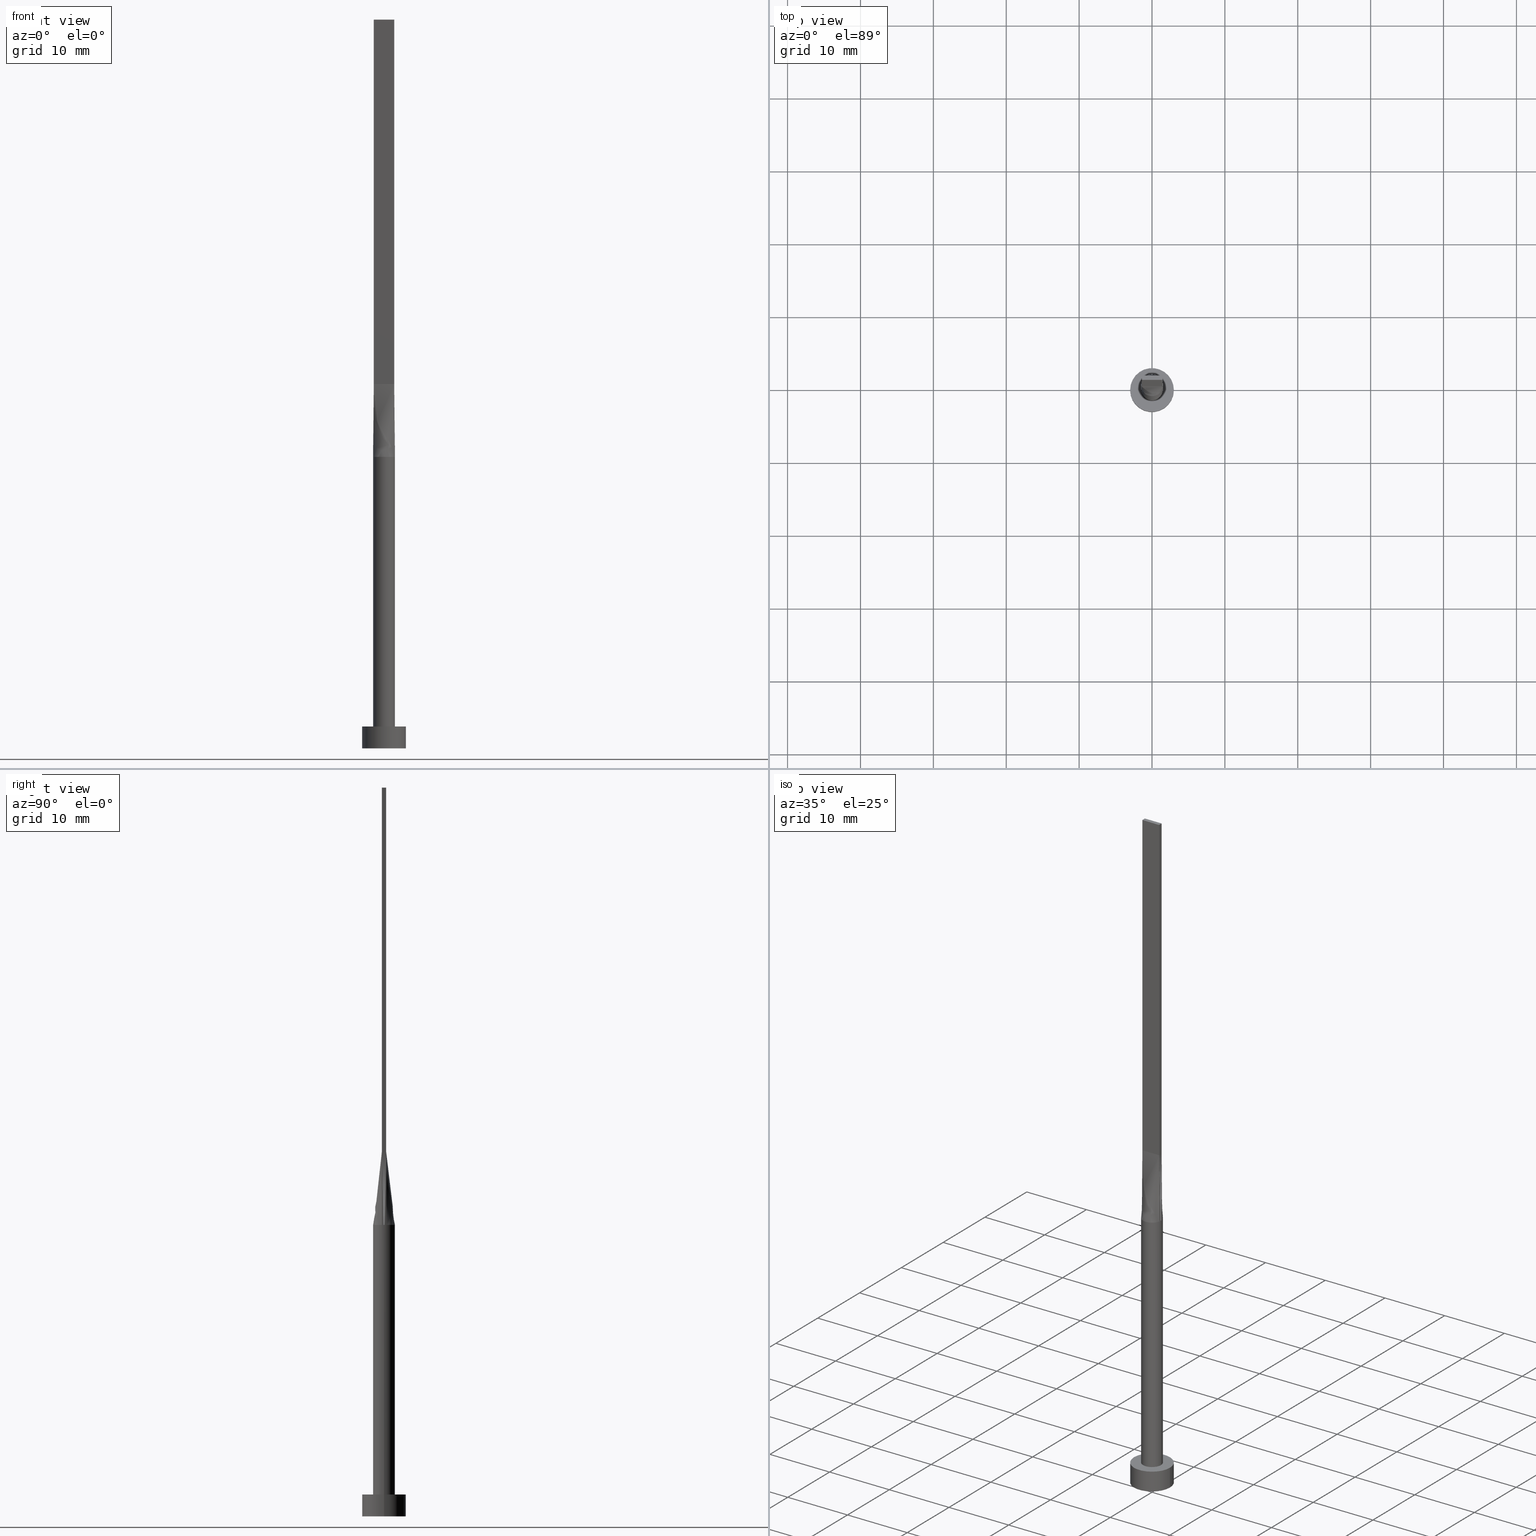
[diagram: canonical four-view strip — front | top / right | iso, engineering-drawing reading convention]
A machine part, canonical four-view strip (front | top / right | iso — engineering-drawing reading convention). The complete STEP part file that produces these views, byte-faithful:
ISO-10303-21;
HEADER;
FILE_DESCRIPTION (( 'STEP AP203' ),
    '1' );
FILE_NAME ('624e.STEP',
    '2026-02-12T09:00:39',
    ( '' ),
    ( '' ),
    'SwSTEP 2.0',
    'SolidWorks 2019',
    '' );
FILE_SCHEMA (( 'CONFIG_CONTROL_DESIGN' ));
ENDSEC;

DATA;
#1 =( LENGTH_UNIT ( ) NAMED_UNIT ( * ) SI_UNIT ( .MILLI., .METRE. ) );
#2 = CARTESIAN_POINT ( 'NONE',  ( 0.8166666666666667629, 0.3000000000000001554, 50.00000000000000000 ) ) ;
#3 = ADVANCED_FACE ( 'NONE', ( #120 ), #307, .F. ) ;
#4 = VECTOR ( 'NONE', #37, 1000.000000000000000 ) ;
#5 = CARTESIAN_POINT ( 'NONE',  ( 1.488654840628309328, 0.2118546087060660665, 40.00000000000000000 ) ) ;
#6 = CARTESIAN_POINT ( 'NONE',  ( 1.261673556793541540, 0.8246322331683844098, 40.00000000000000000 ) ) ;
#7 = CARTESIAN_POINT ( 'NONE',  ( 3.000000000000000444, 3.673940397442060361E-16, 3.000000000000000000 ) ) ;
#8 = DIRECTION ( 'NONE',  ( 1.000000000000000000, 0.000000000000000000, 0.000000000000000000 ) ) ;
#9 = CARTESIAN_POINT ( 'NONE',  ( 1.466854622690809462, -0.3143260906982852099, 40.00000000000000000 ) ) ;
#10 = PERSON_AND_ORGANIZATION ( #448, #331 ) ;
#11 = CARTESIAN_POINT ( 'NONE',  ( -1.167251067653077845, -0.9579686032593084377, 40.00000000000000711 ) ) ;
#12 = ORIENTED_EDGE ( 'NONE', *, *, #298, .T. ) ;
#13 = CARTESIAN_POINT ( 'NONE',  ( 0.2333333333333334758, 0.3000000000000001554, 50.00000000000000000 ) ) ;
#14 = DIRECTION ( 'NONE',  ( 1.000000000000000000, -5.808225924029488744E-17, 0.000000000000000000 ) ) ;
#15 = CARTESIAN_POINT ( 'NONE',  ( -0.7614511870148455985, -1.306864626778803995, 40.00000000000000000 ) ) ;
#16 = AXIS2_PLACEMENT_3D ( 'NONE', #405, #225, #267 ) ;
#17 = APPLICATION_CONTEXT ( 'configuration controlled 3d designs of mechanical parts and assemblies' ) ;
#18 = ADVANCED_FACE ( 'NONE', ( #70, #532 ), #136, .T. ) ;
#19 = AXIS2_PLACEMENT_3D ( 'NONE', #237, #499, #92 ) ;
#20 = FACE_OUTER_BOUND ( 'NONE', #98, .T. ) ;
#21 = CARTESIAN_POINT ( 'NONE',  ( -0.2333333333333330595, -0.2999999999999997113, 50.00000000000000711 ) ) ;
#22 = CARTESIAN_POINT ( 'NONE',  ( 0.8166666666666669849, -0.2999999999999997113, 50.00000000000000000 ) ) ;
#23 = EDGE_LOOP ( 'NONE', ( #305, #186, #171, #167 ) ) ;
#24 = APPROVAL ( #248, 'NEUR�EN�' ) ;
#25 = CALENDAR_DATE ( 2026, 12, 2 ) ;
#26 = CIRCLE ( 'NONE', #312, 1.500000000000000222 ) ;
#27 = EDGE_LOOP ( 'NONE', ( #302, #345, #118, #165, #173, #261 ) ) ;
#28 = DATE_AND_TIME ( #294, #271 ) ;
#29 = DIRECTION ( 'NONE',  ( 1.000000000000000000, 0.000000000000000000, 0.000000000000000000 ) ) ;
#30 = ORIENTED_EDGE ( 'NONE', *, *, #550, .T. ) ;
#31 = DIRECTION ( 'NONE',  ( 0.000000000000000000, 0.000000000000000000, 1.000000000000000000 ) ) ;
#32 = ORIENTED_EDGE ( 'NONE', *, *, #547, .T. ) ;
#33 = CARTESIAN_POINT ( 'NONE',  ( -1.399999999999999689, 0.1000000000000005329, 50.00000000000000000 ) ) ;
#34 = CARTESIAN_POINT ( 'NONE',  ( 0.000000000000000000, 0.000000000000000000, 3.000000000000000000 ) ) ;
#35 = DIRECTION ( 'NONE',  ( -0.000000000000000000, -0.000000000000000000, -1.000000000000000000 ) ) ;
#36 = CARTESIAN_POINT ( 'NONE',  ( 1.441093865018553410, 0.4338058282182615244, 39.99999999999999289 ) ) ;
#37 = DIRECTION ( 'NONE',  ( -0.000000000000000000, -0.000000000000000000, -1.000000000000000000 ) ) ;
#38 = DIRECTION ( 'NONE',  ( 1.000000000000000000, 0.000000000000000000, 0.000000000000000000 ) ) ;
#39 = EDGE_CURVE ( 'NONE', #466, #545, #436, .T. ) ;
#40 = CARTESIAN_POINT ( 'NONE',  ( 1.466825456746648992, 0.3143198820638501978, 40.00000000000000000 ) ) ;
#41 = B_SPLINE_SURFACE_WITH_KNOTS ( 'NONE', 3, 1, ( 
 ( #124, #576 ),
 ( #303, #133 ),
 ( #310, #33 ),
 ( #479, #573 ),
 ( #184, #257 ),
 ( #441, #481 ) ),
 .UNSPECIFIED., .F., .F., .F.,
 ( 4, 2, 4 ),
 ( 2, 2 ),
 ( 0.000000000000000000, 0.5000000000000000000, 1.000000000000000000 ),
 ( 0.000000000000000000, 1.000000000000000000 ),
 .UNSPECIFIED. ) ;
#42 = MANIFOLD_SOLID_BREP ( 'P�idat vysunut�m5', #194 ) ;
#43 = CARTESIAN_POINT ( 'NONE',  ( -1.167251067653078289, 0.9579686032593087708, 40.00000000000003553 ) ) ;
#44 = DATE_AND_TIME ( #272, #96 ) ;
#45 = ORIENTED_EDGE ( 'NONE', *, *, #455, .F. ) ;
#46 = CYLINDRICAL_SURFACE ( 'NONE', #417, 3.000000000000000444 ) ;
#47 = CARTESIAN_POINT ( 'NONE',  ( -1.399999999999999911, -0.2999999999999996003, 50.00000000000000000 ) ) ;
#48 = CARTESIAN_POINT ( 'NONE',  ( 1.283333333333333215, 0.3000000000000002109, 50.00000000000000000 ) ) ;
#49 = VECTOR ( 'NONE', #256, 1000.000000000000000 ) ;
#50 = CARTESIAN_POINT ( 'NONE',  ( -1.399999999999999689, 0.3000000000000002109, 50.00000000000000000 ) ) ;
#51 = CARTESIAN_POINT ( 'NONE',  ( -0.1166666666666665297, 0.3000000000000001554, 50.00000000000000000 ) ) ;
#52 = DIRECTION ( 'NONE',  ( 0.000000000000000000, 0.000000000000000000, 1.000000000000000000 ) ) ;
#53 = CARTESIAN_POINT ( 'NONE',  ( -0.5833333333333331483, -0.2999999999999996558, 50.00000000000000711 ) ) ;
#54 = FACE_OUTER_BOUND ( 'NONE', #166, .T. ) ;
#55 = DIRECTION ( 'NONE',  ( -0.000000000000000000, -0.000000000000000000, -1.000000000000000000 ) ) ;
#56 = CARTESIAN_POINT ( 'NONE',  ( 1.399999999999999911, -0.2999999999999997669, 50.00000000000000000 ) ) ;
#57 = ORIENTED_EDGE ( 'NONE', *, *, #155, .T. ) ;
#58 = CARTESIAN_POINT ( 'NONE',  ( 1.398339371956842880, 0.5625704264602660043, 40.00000000000001421 ) ) ;
#59 = CARTESIAN_POINT ( 'NONE',  ( -0.9173979595380682417, -1.199399801402030397, 40.00000000000000711 ) ) ;
#60 = VECTOR ( 'NONE', #55, 1000.000000000000000 ) ;
#61 = FACE_OUTER_BOUND ( 'NONE', #182, .T. ) ;
#62 = ORIENTED_EDGE ( 'NONE', *, *, #259, .T. ) ;
#63 = ADVANCED_FACE ( 'NONE', ( #309 ), #130, .T. ) ;
#64 = PERSON_AND_ORGANIZATION ( #448, #331 ) ;
#65 = EDGE_LOOP ( 'NONE', ( #393, #223, #203, #467, #525, #348 ) ) ;
#66 = DIRECTION ( 'NONE',  ( -1.000000000000000000, 0.000000000000000000, 0.000000000000000000 ) ) ;
#67 = VECTOR ( 'NONE', #273, 1000.000000000000000 ) ;
#68 = CC_DESIGN_SECURITY_CLASSIFICATION ( #293, ( #196 ) ) ;
#69 = DATE_AND_TIME ( #289, #420 ) ;
#70 = FACE_BOUND ( 'NONE', #304, .T. ) ;
#71 = CARTESIAN_POINT ( 'NONE',  ( 1.500000000000000222, 1.836970198721030181E-16, 40.00000000000000000 ) ) ;
#72 = ORIENTED_EDGE ( 'NONE', *, *, #547, .F. ) ;
#73 = ORIENTED_EDGE ( 'NONE', *, *, #87, .T. ) ;
#74 = LINE ( 'NONE', #350, #4 ) ;
#75 = VERTEX_POINT ( 'NONE', #351 ) ;
#76 = CARTESIAN_POINT ( 'NONE',  ( 1.433351810558057160, -0.3071468165481548440, 45.00000000000000000 ) ) ;
#77 = AXIS2_PLACEMENT_3D ( 'NONE', #540, #577, #38 ) ;
#78 = PRODUCT ( '624e', '624e', '', ( #379 ) ) ;
#79 = CARTESIAN_POINT ( 'NONE',  ( -1.399999999999999911, -0.2999999999999996003, 100.0000000000000000 ) ) ;
#80 = LINE ( 'NONE', #260, #245 ) ;
#81 = EDGE_CURVE ( 'NONE', #466, #108, #389, .T. ) ;
#82 = FACE_OUTER_BOUND ( 'NONE', #371, .T. ) ;
#83 = EDGE_CURVE ( 'NONE', #507, #375, #487, .T. ) ;
#84 = CARTESIAN_POINT ( 'NONE',  ( 0.000000000000000000, 0.000000000000000000, 100.0000000000000000 ) ) ;
#85 = CARTESIAN_POINT ( 'NONE',  ( 0.4035854070682468042, 1.457676878506885654, 39.99999999999999289 ) ) ;
#86 = CIRCLE ( 'NONE', #179, 3.000000000000000444 ) ;
#87 = EDGE_CURVE ( 'NONE', #169, #347, #428, .T. ) ;
#88 = APPROVAL_ROLE ( '' ) ;
#89 = PLANE ( 'NONE',  #435 ) ;
#90 = DIRECTION ( 'NONE',  ( 1.000000000000000000, 3.552713678800500929E-15, 0.000000000000000000 ) ) ;
#91 = DIRECTION ( 'NONE',  ( 0.000000000000000000, 0.000000000000000000, 1.000000000000000000 ) ) ;
#92 = DIRECTION ( 'NONE',  ( 1.000000000000000000, 0.000000000000000000, 0.000000000000000000 ) ) ;
#93 = CARTESIAN_POINT ( 'NONE',  ( 1.166666666666666519, 0.3000000000000002109, 50.00000000000000000 ) ) ;
#94 = AXIS2_PLACEMENT_3D ( 'NONE', #34, #478, #66 ) ;
#95 = DIRECTION ( 'NONE',  ( 1.000000000000000000, 0.000000000000000000, 0.000000000000000000 ) ) ;
#96 = LOCAL_TIME ( 10, 0, 39.00000000000000000, #554 ) ;
#97 = PRODUCT_DEFINITION ( 'NEZN�M�', '', #196, #486 ) ;
#98 = EDGE_LOOP ( 'NONE', ( #132, #216, #423, #30 ) ) ;
#99 = CARTESIAN_POINT ( 'NONE',  ( -1.441093865018553410, 0.4338058282182611913, 39.99999999999997868 ) ) ;
#100 = EDGE_CURVE ( 'NONE', #116, #324, #328, .T. ) ;
#101 = CARTESIAN_POINT ( 'NONE',  ( -1.466837926445876628, -0.3143226152917824034, 40.00000000000000000 ) ) ;
#102 = CARTESIAN_POINT ( 'NONE',  ( 0.000000000000000000, 0.000000000000000000, 0.000000000000000000 ) ) ;
#103 = CC_DESIGN_PERSON_AND_ORGANIZATION_ASSIGNMENT ( #283, #146, ( #78 ) ) ;
#104 = ORIENTED_EDGE ( 'NONE', *, *, #298, .F. ) ;
#105 = DIRECTION ( 'NONE',  ( 1.000000000000000000, 0.000000000000000000, 0.000000000000000000 ) ) ;
#106 = CARTESIAN_POINT ( 'NONE',  ( 0.9333333333333337922, -0.2999999999999997113, 50.00000000000000000 ) ) ;
#107 = ADVANCED_BREP_SHAPE_REPRESENTATION ( '624e', ( #42, #19 ), #142 ) ;
#108 = VERTEX_POINT ( 'NONE', #217 ) ;
#109 = ORIENTED_EDGE ( 'NONE', *, *, #269, .F. ) ;
#110 = ADVANCED_FACE ( 'NONE', ( #82 ), #46, .T. ) ;
#111 = APPROVAL_DATE_TIME ( #429, #24 ) ;
#112 = DIRECTION ( 'NONE',  ( 1.000000000000000000, 0.000000000000000000, -0.000000000000000000 ) ) ;
#113 = AXIS2_PLACEMENT_3D ( 'NONE', #84, #229, #493 ) ;
#114 = EDGE_CURVE ( 'NONE', #75, #212, #145, .T. ) ;
#115 = LOCAL_TIME ( 10, 0, 39.00000000000000000, #563 ) ;
#116 = VERTEX_POINT ( 'NONE', #574 ) ;
#117 = CALENDAR_DATE ( 2026, 12, 2 ) ;
#118 = ORIENTED_EDGE ( 'NONE', *, *, #275, .T. ) ;
#119 = B_SPLINE_CURVE_WITH_KNOTS ( 'NONE', 3,
 ( #40, #36, #191, #361, #141, #185, #355, #85, #189, #270, #542, #446, #313, #43, #489, #442, #265, #231 ),
 .UNSPECIFIED., .F., .F.,
 ( 4, 2, 2, 2, 2, 2, 2, 2, 4 ),
 ( 0.000000000000000000, 0.1249999999999999445, 0.2499999999999998890, 0.3749999999999998890, 0.4999999999999998890, 0.6249999999999998890, 0.7500000000000000000, 0.8749999999999998890, 1.000000000000000000 ),
 .UNSPECIFIED. ) ;
#120 = FACE_OUTER_BOUND ( 'NONE', #339, .T. ) ;
#121 = EDGE_LOOP ( 'NONE', ( #334, #349, #241, #557, #104 ) ) ;
#122 = PERSON_AND_ORGANIZATION ( #448, #331 ) ;
#123 = DIRECTION ( 'NONE',  ( 0.000000000000000000, 0.000000000000000000, 1.000000000000000000 ) ) ;
#124 = CARTESIAN_POINT ( 'NONE',  ( -1.466703621116114409, 0.3142936330963100322, 40.00000000000000000 ) ) ;
#125 = CIRCLE ( 'NONE', #444, 1.500000000000000222 ) ;
#126 = ORIENTED_EDGE ( 'NONE', *, *, #276, .F. ) ;
#127 = APPROVAL_PERSON_ORGANIZATION ( #174, #24, #468 ) ;
#128 = ORIENTED_EDGE ( 'NONE', *, *, #39, .T. ) ;
#129 = ADVANCED_FACE ( 'NONE', ( #492 ), #449, .T. ) ;
#130 = CYLINDRICAL_SURFACE ( 'NONE', #94, 3.000000000000000444 ) ;
#131 = DIRECTION ( 'NONE',  ( -0.000000000000000000, -0.000000000000000000, -1.000000000000000000 ) ) ;
#132 = ORIENTED_EDGE ( 'NONE', *, *, #579, .T. ) ;
#133 = CARTESIAN_POINT ( 'NONE',  ( -1.399999999999999689, 0.2000000000000004274, 50.00000000000000000 ) ) ;
#134 = B_SPLINE_SURFACE_WITH_KNOTS ( 'NONE', 3, 1, ( 
 ( #510, #56 ),
 ( #295, #513 ),
 ( #462, #411 ),
 ( #543, #193 ),
 ( #5, #279 ),
 ( #158, #197 ) ),
 .UNSPECIFIED., .F., .F., .F.,
 ( 4, 2, 4 ),
 ( 2, 2 ),
 ( 0.000000000000000000, 0.5000000000000000000, 1.000000000000000000 ),
 ( 0.000000000000000000, 1.000000000000000000 ),
 .UNSPECIFIED. ) ;
#135 = UNCERTAINTY_MEASURE_WITH_UNIT (LENGTH_MEASURE( 1.000000000000000082E-05 ), #1, 'distance_accuracy_value', 'NONE');
#136 = PLANE ( 'NONE',  #311 ) ;
#137 = APPROVAL ( #168, 'NEUR�EN�' ) ;
#138 = LINE ( 'NONE', #314, #569 ) ;
#139 = EDGE_CURVE ( 'NONE', #116, #383, #399, .T. ) ;
#140 = AXIS2_PLACEMENT_3D ( 'NONE', #457, #242, #204 ) ;
#141 = CARTESIAN_POINT ( 'NONE',  ( 1.167251067653077401, 0.9579686032593092149, 40.00000000000002132 ) ) ;
#142 =( GEOMETRIC_REPRESENTATION_CONTEXT ( 3 ) GLOBAL_UNCERTAINTY_ASSIGNED_CONTEXT ( ( #135 ) ) GLOBAL_UNIT_ASSIGNED_CONTEXT ( ( #1, #415, #447 ) ) REPRESENTATION_CONTEXT ( 'NONE', 'WORKASPACE' ) );
#143 = CARTESIAN_POINT ( 'NONE',  ( -1.399999999999999689, 0.3000000000000002109, 100.0000000000000000 ) ) ;
#144 = CARTESIAN_POINT ( 'NONE',  ( -1.433351810558057160, 0.3071468165481554546, 45.00000000000000000 ) ) ;
#145 = LINE ( 'NONE', #192, #386 ) ;
#146 = PERSON_AND_ORGANIZATION_ROLE ( 'design_owner' ) ;
#147 = DIRECTION ( 'NONE',  ( -0.000000000000000000, -0.000000000000000000, -1.000000000000000000 ) ) ;
#148 = AXIS2_PLACEMENT_3D ( 'NONE', #306, #308, #568 ) ;
#149 = VECTOR ( 'NONE', #495, 1000.000000000000000 ) ;
#150 = APPLICATION_CONTEXT ( 'configuration controlled 3d designs of mechanical parts and assemblies' ) ;
#151 = CARTESIAN_POINT ( 'NONE',  ( -1.166666666666666075, 0.3000000000000002665, 50.00000000000000000 ) ) ;
#152 = LINE ( 'NONE', #50, #149 ) ;
#153 = CARTESIAN_POINT ( 'NONE',  ( -0.2021039475585064971, 1.499999999999999556, 40.00000000000000000 ) ) ;
#154 = FACE_OUTER_BOUND ( 'NONE', #177, .T. ) ;
#155 = EDGE_CURVE ( 'NONE', #156, #169, #556, .T. ) ;
#156 = VERTEX_POINT ( 'NONE', #233 ) ;
#157 = CARTESIAN_POINT ( 'NONE',  ( 1.466703621116114409, 0.3142936330963102542, 40.00000000000000000 ) ) ;
#158 = CARTESIAN_POINT ( 'NONE',  ( 1.466703621116114409, 0.3142936330963098102, 40.00000000000000000 ) ) ;
#159 = CARTESIAN_POINT ( 'NONE',  ( 1.466703621116114409, -0.3142936330963098657, 40.00000000000000000 ) ) ;
#160 = CARTESIAN_POINT ( 'NONE',  ( -0.9173979595380679086, 1.199399801402030397, 40.00000000000000000 ) ) ;
#161 = CARTESIAN_POINT ( 'NONE',  ( 1.261673556793541762, -0.8246322331683848539, 40.00000000000000000 ) ) ;
#162 = ADVANCED_FACE ( 'NONE', ( #316 ), #534, .T. ) ;
#163 = PERSON_AND_ORGANIZATION ( #448, #331 ) ;
#164 = CARTESIAN_POINT ( 'NONE',  ( 0.7614511870148451544, -1.306864626778804439, 39.99999999999998579 ) ) ;
#165 = ORIENTED_EDGE ( 'NONE', *, *, #342, .F. ) ;
#166 = EDGE_LOOP ( 'NONE', ( #400, #277, #353, #356 ) ) ;
#167 = ORIENTED_EDGE ( 'NONE', *, *, #183, .T. ) ;
#168 = APPROVAL_STATUS ( 'not_yet_approved' ) ;
#169 = VERTEX_POINT ( 'NONE', #268 ) ;
#170 = APPROVAL_PERSON_ORGANIZATION ( #477, #137, #210 ) ;
#171 = ORIENTED_EDGE ( 'NONE', *, *, #81, .T. ) ;
#172 = ORIENTED_EDGE ( 'NONE', *, *, #39, .F. ) ;
#173 = ORIENTED_EDGE ( 'NONE', *, *, #100, .F. ) ;
#174 = PERSON_AND_ORGANIZATION ( #448, #331 ) ;
#175 = ORIENTED_EDGE ( 'NONE', *, *, #183, .F. ) ;
#176 = EDGE_CURVE ( 'NONE', #108, #483, #443, .T. ) ;
#177 = EDGE_LOOP ( 'NONE', ( #469, #291 ) ) ;
#178 = DIRECTION ( 'NONE',  ( -0.006670206908340743472, 0.001429330051787287706, 0.9999767324070110153 ) ) ;
#179 = AXIS2_PLACEMENT_3D ( 'NONE', #288, #91, #244 ) ;
#180 = DIRECTION ( 'NONE',  ( -1.000000000000000000, -3.614007241618348771E-16, 0.000000000000000000 ) ) ;
#181 = FACE_OUTER_BOUND ( 'NONE', #344, .T. ) ;
#182 = EDGE_LOOP ( 'NONE', ( #62, #12, #72, #575 ) ) ;
#183 = EDGE_CURVE ( 'NONE', #108, #507, #321, .T. ) ;
#184 = CARTESIAN_POINT ( 'NONE',  ( -1.488654840628309328, -0.2118546087060659000, 40.00000000000000000 ) ) ;
#185 = CARTESIAN_POINT ( 'NONE',  ( 0.9173979595380679086, 1.199399801402031285, 40.00000000000001421 ) ) ;
#186 = ORIENTED_EDGE ( 'NONE', *, *, #317, .T. ) ;
#187 = LINE ( 'NONE', #71, #544 ) ;
#188 = VECTOR ( 'NONE', #580, 1000.000000000000000 ) ;
#189 = CARTESIAN_POINT ( 'NONE',  ( 0.2021039475585061640, 1.500000000000000222, 40.00000000000000711 ) ) ;
#190 = CC_DESIGN_APPROVAL ( #137, ( #196 ) ) ;
#191 = CARTESIAN_POINT ( 'NONE',  ( 1.398339371956842880, 0.5625704264602660043, 40.00000000000001421 ) ) ;
#192 = CARTESIAN_POINT ( 'NONE',  ( 1.433351810558057160, 0.3071468165481550106, 45.00000000000000000 ) ) ;
#193 = CARTESIAN_POINT ( 'NONE',  ( 1.399999999999999689, 0.1000000000000000194, 50.00000000000000000 ) ) ;
#194 = CLOSED_SHELL ( 'NONE', ( #162, #110, #63, #18, #485, #424, #494, #500, #401, #253, #296, #323, #222, #3, #129 ) ) ;
#195 = CARTESIAN_POINT ( 'NONE',  ( 0.9333333333333333481, 0.3000000000000002109, 50.00000000000000000 ) ) ;
#196 = PRODUCT_DEFINITION_FORMATION_WITH_SPECIFIED_SOURCE ( 'LIBOVOLN�', '', #78, .NOT_KNOWN. ) ;
#197 = CARTESIAN_POINT ( 'NONE',  ( 1.399999999999999689, 0.3000000000000002109, 50.00000000000000000 ) ) ;
#198 = CARTESIAN_POINT ( 'NONE',  ( 0.7614511870148451544, 1.306864626778804883, 40.00000000000000000 ) ) ;
#199 = CARTESIAN_POINT ( 'NONE',  ( -0.4035854070682473038, -1.457676878506884988, 40.00000000000000000 ) ) ;
#200 = CARTESIAN_POINT ( 'NONE',  ( 1.167251067653077401, 0.9579686032593092149, 40.00000000000002132 ) ) ;
#201 = APPROVAL_STATUS ( 'not_yet_approved' ) ;
#202 = CARTESIAN_POINT ( 'NONE',  ( 0.5833333333333337034, -0.2999999999999997113, 50.00000000000000000 ) ) ;
#203 = ORIENTED_EDGE ( 'NONE', *, *, #259, .F. ) ;
#204 = DIRECTION ( 'NONE',  ( 1.000000000000000000, 0.000000000000000000, 0.000000000000000000 ) ) ;
#205 = VECTOR ( 'NONE', #406, 1000.000000000000114 ) ;
#206 = CARTESIAN_POINT ( 'NONE',  ( 1.398339371956842880, -0.5625704264602661153, 40.00000000000000000 ) ) ;
#207 = PLANE ( 'NONE',  #148 ) ;
#208 = CARTESIAN_POINT ( 'NONE',  ( -1.441093865018553632, -0.4338058282182608583, 39.99999999999999289 ) ) ;
#209 = ORIENTED_EDGE ( 'NONE', *, *, #176, .F. ) ;
#210 = APPROVAL_ROLE ( '' ) ;
#211 = CARTESIAN_POINT ( 'NONE',  ( 0.000000000000000000, 0.000000000000000000, 0.000000000000000000 ) ) ;
#212 = VERTEX_POINT ( 'NONE', #403 ) ;
#213 = VECTOR ( 'NONE', #480, 1000.000000000000000 ) ;
#214 = ORIENTED_EDGE ( 'NONE', *, *, #317, .F. ) ;
#215 = EDGE_CURVE ( 'NONE', #75, #116, #119, .T. ) ;
#216 = ORIENTED_EDGE ( 'NONE', *, *, #414, .F. ) ;
#217 = CARTESIAN_POINT ( 'NONE',  ( 1.399999999999999911, -0.2999999999999997669, 100.0000000000000000 ) ) ;
#218 = DIRECTION ( 'NONE',  ( 1.000000000000000000, 0.000000000000000000, 0.000000000000000000 ) ) ;
#219 = ORIENTED_EDGE ( 'NONE', *, *, #100, .T. ) ;
#220 = CARTESIAN_POINT ( 'NONE',  ( 0.000000000000000000, 0.000000000000000000, 3.000000000000000000 ) ) ;
#221 = CC_DESIGN_APPROVAL ( #297, ( #97 ) ) ;
#222 = ADVANCED_FACE ( 'NONE', ( #497 ), #89, .F. ) ;
#223 = ORIENTED_EDGE ( 'NONE', *, *, #529, .F. ) ;
#224 = DIRECTION ( 'NONE',  ( -1.000000000000000000, 0.000000000000000000, 0.000000000000000000 ) ) ;
#225 = DIRECTION ( 'NONE',  ( -0.000000000000000000, -0.000000000000000000, -1.000000000000000000 ) ) ;
#226 = ORIENTED_EDGE ( 'NONE', *, *, #275, .F. ) ;
#227 = LINE ( 'NONE', #398, #263 ) ;
#228 = CARTESIAN_POINT ( 'NONE',  ( 1.399999999999999911, -0.2999999999999997669, 100.0000000000000000 ) ) ;
#229 = DIRECTION ( 'NONE',  ( 0.000000000000000000, 0.000000000000000000, 1.000000000000000000 ) ) ;
#230 = AXIS2_PLACEMENT_3D ( 'NONE', #509, #52, #90 ) ;
#231 = CARTESIAN_POINT ( 'NONE',  ( -1.466842056764351865, 0.3143233427268645186, 40.00000000000000000 ) ) ;
#232 = APPROVAL_DATE_TIME ( #44, #297 ) ;
#233 = CARTESIAN_POINT ( 'NONE',  ( 3.000000000000000444, 3.673940397442060361E-16, 3.000000000000000000 ) ) ;
#234 = CARTESIAN_POINT ( 'NONE',  ( 0.4035854070682468042, 1.457676878506885654, 39.99999999999999289 ) ) ;
#235 = CARTESIAN_POINT ( 'NONE',  ( -1.283333333333332993, 0.3000000000000002665, 50.00000000000000000 ) ) ;
#236 = EDGE_CURVE ( 'NONE', #562, #347, #320, .T. ) ;
#237 = CARTESIAN_POINT ( 'NONE',  ( 0.000000000000000000, 0.000000000000000000, 0.000000000000000000 ) ) ;
#238 = CARTESIAN_POINT ( 'NONE',  ( -0.2333333333333330595, 0.3000000000000001554, 50.00000000000000000 ) ) ;
#239 = LINE ( 'NONE', #7, #60 ) ;
#240 = CARTESIAN_POINT ( 'NONE',  ( -1.500000000000000222, 0.000000000000000000, 3.000000000000000000 ) ) ;
#241 = ORIENTED_EDGE ( 'NONE', *, *, #114, .T. ) ;
#242 = DIRECTION ( 'NONE',  ( 0.000000000000000000, 0.000000000000000000, 1.000000000000000000 ) ) ;
#243 = CARTESIAN_POINT ( 'NONE',  ( -1.261673556793542206, -0.8246322331683838547, 39.99999999999998579 ) ) ;
#244 = DIRECTION ( 'NONE',  ( 1.000000000000000000, 0.000000000000000000, 0.000000000000000000 ) ) ;
#245 = VECTOR ( 'NONE', #395, 1000.000000000000000 ) ;
#246 = APPROVAL_DATE_TIME ( #28, #137 ) ;
#247 = DIRECTION ( 'NONE',  ( 0.000000000000000000, 0.000000000000000000, 1.000000000000000000 ) ) ;
#248 = APPROVAL_STATUS ( 'not_yet_approved' ) ;
#249 = CARTESIAN_POINT ( 'NONE',  ( 0.2021039475585061640, -1.499999999999999778, 40.00000000000000000 ) ) ;
#250 = ORIENTED_EDGE ( 'NONE', *, *, #176, .T. ) ;
#251 = VERTEX_POINT ( 'NONE', #9 ) ;
#252 = ORIENTED_EDGE ( 'NONE', *, *, #541, .F. ) ;
#253 = ADVANCED_FACE ( 'NONE', ( #54 ), #264, .T. ) ;
#254 = CARTESIAN_POINT ( 'NONE',  ( -1.399999999999999911, -0.2999999999999996003, 100.0000000000000000 ) ) ;
#255 = ORIENTED_EDGE ( 'NONE', *, *, #81, .F. ) ;
#256 = DIRECTION ( 'NONE',  ( -0.000000000000000000, -0.000000000000000000, -1.000000000000000000 ) ) ;
#257 = CARTESIAN_POINT ( 'NONE',  ( -1.399999999999999911, -0.1999999999999994560, 50.00000000000000000 ) ) ;
#258 = DIRECTION ( 'NONE',  ( 1.000000000000000000, -5.808225924029488744E-17, 0.000000000000000000 ) ) ;
#259 = EDGE_CURVE ( 'NONE', #516, #251, #453, .T. ) ;
#260 = CARTESIAN_POINT ( 'NONE',  ( 1.399999999999999689, 0.3000000000000002109, 50.00000000000000000 ) ) ;
#261 = ORIENTED_EDGE ( 'NONE', *, *, #215, .F. ) ;
#262 = DIRECTION ( 'NONE',  ( 1.000000000000000000, -3.614007241618349757E-16, 0.000000000000000000 ) ) ;
#263 = VECTOR ( 'NONE', #131, 1000.000000000000000 ) ;
#264 = B_SPLINE_SURFACE_WITH_KNOTS ( 'NONE', 3, 1, ( 
 ( #157, #407 ),
 ( #413, #48 ),
 ( #58, #93 ),
 ( #6, #195 ),
 ( #200, #2 ),
 ( #451, #454 ),
 ( #198, #460 ),
 ( #234, #13 ),
 ( #419, #408 ),
 ( #153, #51 ),
 ( #326, #238 ),
 ( #501, #558 ),
 ( #160, #325 ),
 ( #372, #368 ),
 ( #330, #508 ),
 ( #553, #151 ),
 ( #99, #235 ),
 ( #366, #285 ) ),
 .UNSPECIFIED., .F., .F., .F.,
 ( 4, 2, 2, 2, 2, 2, 2, 2, 4 ),
 ( 2, 2 ),
 ( 0.000000000000000000, 0.1249999999999999445, 0.2499999999999998890, 0.3749999999999998890, 0.4999999999999998890, 0.6249999999999998890, 0.7500000000000000000, 0.8749999999999998890, 1.000000000000000000 ),
 ( 0.000000000000000000, 1.000000000000000000 ),
 .UNSPECIFIED. ) ;
#265 = CARTESIAN_POINT ( 'NONE',  ( -1.441093865018553410, 0.4338058282182611913, 39.99999999999997868 ) ) ;
#266 = CARTESIAN_POINT ( 'NONE',  ( -1.399999999999999689, 0.3000000000000002109, 100.0000000000000000 ) ) ;
#267 = DIRECTION ( 'NONE',  ( -1.000000000000000000, 0.000000000000000000, 0.000000000000000000 ) ) ;
#268 = CARTESIAN_POINT ( 'NONE',  ( -3.000000000000000444, 0.000000000000000000, 3.000000000000000000 ) ) ;
#269 = EDGE_CURVE ( 'NONE', #545, #516, #377, .T. ) ;
#270 = CARTESIAN_POINT ( 'NONE',  ( -0.2021039475585064971, 1.499999999999999556, 40.00000000000000000 ) ) ;
#271 = LOCAL_TIME ( 10, 0, 39.00000000000000000, #299 ) ;
#272 = CALENDAR_DATE ( 2026, 12, 2 ) ;
#273 = DIRECTION ( 'NONE',  ( -3.614007241618348278E-16, 1.000000000000000000, 0.000000000000000000 ) ) ;
#274 = LINE ( 'NONE', #458, #378 ) ;
#275 = EDGE_CURVE ( 'NONE', #390, #470, #125, .T. ) ;
#276 = EDGE_CURVE ( 'NONE', #169, #156, #86, .T. ) ;
#277 = ORIENTED_EDGE ( 'NONE', *, *, #139, .T. ) ;
#278 = DIRECTION ( 'NONE',  ( -1.000000000000000000, 5.808225924029488744E-17, 0.000000000000000000 ) ) ;
#279 = CARTESIAN_POINT ( 'NONE',  ( 1.399999999999999689, 0.2000000000000000666, 50.00000000000000000 ) ) ;
#280 = AXIS2_PLACEMENT_3D ( 'NONE', #433, #180, #300 ) ;
#281 = DIRECTION ( 'NONE',  ( 1.000000000000000000, 0.000000000000000000, 0.000000000000000000 ) ) ;
#282 = AXIS2_PLACEMENT_3D ( 'NONE', #102, #247, #8 ) ;
#283 = PERSON_AND_ORGANIZATION ( #448, #331 ) ;
#284 = CARTESIAN_POINT ( 'NONE',  ( 1.441093865018553410, -0.4338058282182614689, 40.00000000000000000 ) ) ;
#285 = CARTESIAN_POINT ( 'NONE',  ( -1.399999999999999689, 0.3000000000000002109, 50.00000000000000000 ) ) ;
#286 = LINE ( 'NONE', #47, #506 ) ;
#287 = CARTESIAN_POINT ( 'NONE',  ( -0.4666666666666664520, -0.2999999999999997113, 50.00000000000000711 ) ) ;
#288 = CARTESIAN_POINT ( 'NONE',  ( 0.000000000000000000, 0.000000000000000000, 3.000000000000000000 ) ) ;
#289 = CALENDAR_DATE ( 2026, 12, 2 ) ;
#290 = DIRECTION ( 'NONE',  ( 0.000000000000000000, 0.000000000000000000, 1.000000000000000000 ) ) ;
#291 = ORIENTED_EDGE ( 'NONE', *, *, #236, .F. ) ;
#292 = VECTOR ( 'NONE', #567, 1000.000000000000000 ) ;
#293 = SECURITY_CLASSIFICATION ( '', '', #388 ) ;
#294 = CALENDAR_DATE ( 2026, 12, 2 ) ;
#295 = CARTESIAN_POINT ( 'NONE',  ( 1.488654840628309328, -0.2118546087060664274, 40.00000000000000000 ) ) ;
#296 = ADVANCED_FACE ( 'NONE', ( #20 ), #207, .F. ) ;
#297 = APPROVAL ( #201, 'NEUR�EN�' ) ;
#298 = EDGE_CURVE ( 'NONE', #251, #483, #484, .T. ) ;
#299 = COORDINATED_UNIVERSAL_TIME_OFFSET ( 1, 0, .AHEAD. ) ;
#300 = DIRECTION ( 'NONE',  ( 3.614007241618348771E-16, -1.000000000000000000, 0.000000000000000000 ) ) ;
#301 = PERSON_AND_ORGANIZATION_ROLE ( 'classification_officer' ) ;
#302 = ORIENTED_EDGE ( 'NONE', *, *, #475, .F. ) ;
#303 = CARTESIAN_POINT ( 'NONE',  ( -1.488654840628309328, 0.2118546087060662608, 40.00000000000000000 ) ) ;
#304 = EDGE_LOOP ( 'NONE', ( #45, #226 ) ) ;
#305 = ORIENTED_EDGE ( 'NONE', *, *, #83, .T. ) ;
#306 = CARTESIAN_POINT ( 'NONE',  ( 1.399999999999999689, 0.3000000000000002109, 100.0000000000000000 ) ) ;
#307 = PLANE ( 'NONE',  #280 ) ;
#308 = DIRECTION ( 'NONE',  ( 0.000000000000000000, -1.000000000000000000, 0.000000000000000000 ) ) ;
#309 = FACE_OUTER_BOUND ( 'NONE', #343, .T. ) ;
#310 = CARTESIAN_POINT ( 'NONE',  ( -1.499630450384406899, 0.1059273043530332276, 40.00000000000000000 ) ) ;
#311 = AXIS2_PLACEMENT_3D ( 'NONE', #527, #471, #482 ) ;
#312 = AXIS2_PLACEMENT_3D ( 'NONE', #373, #503, #363 ) ;
#313 = CARTESIAN_POINT ( 'NONE',  ( -0.9173979595380679086, 1.199399801402030397, 40.00000000000000000 ) ) ;
#314 = CARTESIAN_POINT ( 'NONE',  ( -1.399999999999999689, 0.3000000000000002109, 50.00000000000000000 ) ) ;
#315 = CC_DESIGN_DATE_AND_TIME_ASSIGNMENT ( #381, #341, ( #97 ) ) ;
#316 = FACE_OUTER_BOUND ( 'NONE', #27, .T. ) ;
#317 = EDGE_CURVE ( 'NONE', #375, #466, #571, .T. ) ;
#318 = CARTESIAN_POINT ( 'NONE',  ( 0.000000000000000000, 0.000000000000000000, 3.000000000000000000 ) ) ;
#319 = APPLICATION_PROTOCOL_DEFINITION ( 'international standard', 'config_control_design', 1994, #17 ) ;
#320 = CIRCLE ( 'NONE', #376, 3.000000000000000444 ) ;
#321 = LINE ( 'NONE', #360, #67 ) ;
#322 = CARTESIAN_POINT ( 'NONE',  ( -1.399999999999999911, -0.2999999999999996003, 50.00000000000000000 ) ) ;
#323 = ADVANCED_FACE ( 'NONE', ( #181 ), #537, .F. ) ;
#324 = VERTEX_POINT ( 'NONE', #354 ) ;
#325 = CARTESIAN_POINT ( 'NONE',  ( -0.5833333333333330373, 0.3000000000000002109, 50.00000000000000000 ) ) ;
#326 = CARTESIAN_POINT ( 'NONE',  ( -0.4035854070682471928, 1.457676878506885432, 40.00000000000000711 ) ) ;
#327 = CARTESIAN_POINT ( 'NONE',  ( 0.1166666666666669600, -0.2999999999999997113, 50.00000000000000711 ) ) ;
#328 = CIRCLE ( 'NONE', #364, 1.500000000000000222 ) ;
#329 = EDGE_LOOP ( 'NONE', ( #32, #209, #255, #128 ) ) ;
#330 = CARTESIAN_POINT ( 'NONE',  ( -1.261673556793542872, 0.8246322331683846318, 40.00000000000002132 ) ) ;
#331 = ORGANIZATION ( 'NEUR�EN�', 'NEUR�EN�', '' ) ;
#332 = CARTESIAN_POINT ( 'NONE',  ( 1.399999999999999911, -0.2999999999999997669, 50.00000000000000000 ) ) ;
#333 = ORIENTED_EDGE ( 'NONE', *, *, #472, .T. ) ;
#334 = ORIENTED_EDGE ( 'NONE', *, *, #529, .T. ) ;
#335 = DIRECTION ( 'NONE',  ( -0.006670206908340743472, -0.001429330051787282068, -0.9999767324070110153 ) ) ;
#336 = CARTESIAN_POINT ( 'NONE',  ( -0.2021039475585066081, -1.499999999999999778, 40.00000000000000000 ) ) ;
#337 = DATE_TIME_ROLE ( 'classification_date' ) ;
#338 = CARTESIAN_POINT ( 'NONE',  ( 1.167251067653077401, -0.9579686032593089928, 40.00000000000000711 ) ) ;
#339 = EDGE_LOOP ( 'NONE', ( #432, #490, #175, #250 ) ) ;
#340 = ORIENTED_EDGE ( 'NONE', *, *, #392, .T. ) ;
#341 = DATE_TIME_ROLE ( 'creation_date' ) ;
#342 = EDGE_CURVE ( 'NONE', #324, #470, #227, .T. ) ;
#343 = EDGE_LOOP ( 'NONE', ( #252, #126, #73, #333 ) ) ;
#344 = EDGE_LOOP ( 'NONE', ( #340, #172, #214, #570 ) ) ;
#345 = ORIENTED_EDGE ( 'NONE', *, *, #440, .T. ) ;
#346 = PERSON_AND_ORGANIZATION_ROLE ( 'creator' ) ;
#347 = VERTEX_POINT ( 'NONE', #533 ) ;
#348 = ORIENTED_EDGE ( 'NONE', *, *, #455, .T. ) ;
#349 = ORIENTED_EDGE ( 'NONE', *, *, #475, .T. ) ;
#350 = CARTESIAN_POINT ( 'NONE',  ( -1.399999999999999689, 0.3000000000000002109, 100.0000000000000000 ) ) ;
#351 = CARTESIAN_POINT ( 'NONE',  ( 1.466825456746648992, 0.3143198820638501978, 40.00000000000000000 ) ) ;
#352 = CARTESIAN_POINT ( 'NONE',  ( -1.399999999999999689, 0.3000000000000002109, 100.0000000000000000 ) ) ;
#353 = ORIENTED_EDGE ( 'NONE', *, *, #579, .F. ) ;
#354 = CARTESIAN_POINT ( 'NONE',  ( -1.499815225192203672, -3.718617114388451945E-16, 40.00000000000000000 ) ) ;
#355 = CARTESIAN_POINT ( 'NONE',  ( 0.7614511870148451544, 1.306864626778804883, 40.00000000000000000 ) ) ;
#356 = ORIENTED_EDGE ( 'NONE', *, *, #114, .F. ) ;
#357 = CC_DESIGN_PERSON_AND_ORGANIZATION_ASSIGNMENT ( #163, #301, ( #293 ) ) ;
#358 = DIRECTION ( 'NONE',  ( 3.614007241618349757E-16, 1.000000000000000000, 0.000000000000000000 ) ) ;
#359 = EDGE_CURVE ( 'NONE', #483, #212, #80, .T. ) ;
#360 = CARTESIAN_POINT ( 'NONE',  ( 1.399999999999999911, -0.2999999999999997669, 100.0000000000000000 ) ) ;
#361 = CARTESIAN_POINT ( 'NONE',  ( 1.261673556793541540, 0.8246322331683844098, 40.00000000000000000 ) ) ;
#362 = DIRECTION ( 'NONE',  ( -0.006670206908340766024, -0.001429330051787238700, 0.9999767324070110153 ) ) ;
#363 = DIRECTION ( 'NONE',  ( 1.000000000000000000, 0.000000000000000000, 0.000000000000000000 ) ) ;
#364 = AXIS2_PLACEMENT_3D ( 'NONE', #523, #123, #29 ) ;
#365 = CIRCLE ( 'NONE', #564, 1.500000000000000222 ) ;
#366 = CARTESIAN_POINT ( 'NONE',  ( -1.466703621116114187, 0.3142936330963106428, 40.00000000000000000 ) ) ;
#367 = CARTESIAN_POINT ( 'NONE',  ( 1.399999999999999689, 0.3000000000000002109, 100.0000000000000000 ) ) ;
#368 = CARTESIAN_POINT ( 'NONE',  ( -0.8166666666666665408, 0.3000000000000002665, 50.00000000000000000 ) ) ;
#369 = APPLICATION_PROTOCOL_DEFINITION ( 'international standard', 'config_control_design', 1994, #150 ) ;
#370 = CARTESIAN_POINT ( 'NONE',  ( -1.398339371956842880, -0.5625704264602655602, 40.00000000000000711 ) ) ;
#371 = EDGE_LOOP ( 'NONE', ( #511, #397, #565, #496 ) ) ;
#372 = CARTESIAN_POINT ( 'NONE',  ( -1.167251067653078289, 0.9579686032593087708, 40.00000000000003553 ) ) ;
#373 = CARTESIAN_POINT ( 'NONE',  ( 0.000000000000000000, 0.000000000000000000, 40.00000000000000000 ) ) ;
#374 = CARTESIAN_POINT ( 'NONE',  ( 0.2333333333333336701, -0.2999999999999997113, 50.00000000000000000 ) ) ;
#375 = VERTEX_POINT ( 'NONE', #143 ) ;
#376 = AXIS2_PLACEMENT_3D ( 'NONE', #551, #410, #281 ) ;
#377 = LINE ( 'NONE', #546, #418 ) ;
#378 = VECTOR ( 'NONE', #450, 1000.000000000000000 ) ;
#379 = MECHANICAL_CONTEXT ( 'NONE', #150, 'mechanical' ) ;
#380 = CARTESIAN_POINT ( 'NONE',  ( 1.283333333333333437, -0.2999999999999997113, 50.00000000000000000 ) ) ;
#381 = DATE_AND_TIME ( #117, #427 ) ;
#382 = CARTESIAN_POINT ( 'NONE',  ( 1.166666666666666963, -0.2999999999999997113, 50.00000000000000000 ) ) ;
#383 = VERTEX_POINT ( 'NONE', #437 ) ;
#384 = CARTESIAN_POINT ( 'NONE',  ( -1.466703621116114409, -0.3142936330963096436, 40.00000000000000000 ) ) ;
#385 = EDGE_LOOP ( 'NONE', ( #530, #57 ) ) ;
#386 = VECTOR ( 'NONE', #362, 1000.000000000000114 ) ;
#387 = AXIS2_PLACEMENT_3D ( 'NONE', #220, #31, #218 ) ;
#388 = SECURITY_CLASSIFICATION_LEVEL ( 'unclassified' ) ;
#389 = LINE ( 'NONE', #254, #505 ) ;
#390 = VERTEX_POINT ( 'NONE', #391 ) ;
#391 = CARTESIAN_POINT ( 'NONE',  ( 1.500000000000000222, 1.836970198721030181E-16, 3.000000000000000000 ) ) ;
#392 = EDGE_CURVE ( 'NONE', #383, #545, #138, .T. ) ;
#393 = ORIENTED_EDGE ( 'NONE', *, *, #440, .F. ) ;
#394 = AXIS2_PLACEMENT_3D ( 'NONE', #402, #35, #224 ) ;
#395 = DIRECTION ( 'NONE',  ( -3.614007241618348278E-16, 1.000000000000000000, -0.000000000000000000 ) ) ;
#396 = ORIENTED_EDGE ( 'NONE', *, *, #139, .F. ) ;
#397 = ORIENTED_EDGE ( 'NONE', *, *, #541, .T. ) ;
#398 = CARTESIAN_POINT ( 'NONE',  ( -1.500000000000000222, 0.000000000000000000, 40.00000000000000000 ) ) ;
#399 = LINE ( 'NONE', #144, #205 ) ;
#400 = ORIENTED_EDGE ( 'NONE', *, *, #215, .T. ) ;
#401 = ADVANCED_FACE ( 'NONE', ( #524 ), #41, .T. ) ;
#402 = CARTESIAN_POINT ( 'NONE',  ( 0.000000000000000000, 0.000000000000000000, 40.00000000000000000 ) ) ;
#403 = CARTESIAN_POINT ( 'NONE',  ( 1.399999999999999689, 0.3000000000000002109, 50.00000000000000000 ) ) ;
#404 = CIRCLE ( 'NONE', #282, 3.000000000000000444 ) ;
#405 = CARTESIAN_POINT ( 'NONE',  ( 0.000000000000000000, 0.000000000000000000, 40.00000000000000000 ) ) ;
#406 = DIRECTION ( 'NONE',  ( 0.006670206908340743472, -0.001429330051787325653, 0.9999767324070110153 ) ) ;
#407 = CARTESIAN_POINT ( 'NONE',  ( 1.399999999999999689, 0.3000000000000002109, 50.00000000000000000 ) ) ;
#408 = CARTESIAN_POINT ( 'NONE',  ( 0.1166666666666667240, 0.3000000000000001554, 50.00000000000000000 ) ) ;
#409 = PLANE ( 'NONE',  #526 ) ;
#410 = DIRECTION ( 'NONE',  ( 0.000000000000000000, 0.000000000000000000, 1.000000000000000000 ) ) ;
#411 = CARTESIAN_POINT ( 'NONE',  ( 1.399999999999999689, -0.09999999999999995004, 50.00000000000000000 ) ) ;
#412 = CARTESIAN_POINT ( 'NONE',  ( -1.399999999999999911, -0.2999999999999996003, 50.00000000000000000 ) ) ;
#413 = CARTESIAN_POINT ( 'NONE',  ( 1.441093865018553410, 0.4338058282182615244, 39.99999999999999289 ) ) ;
#414 = EDGE_CURVE ( 'NONE', #375, #383, #74, .T. ) ;
#415 =( NAMED_UNIT ( * ) PLANE_ANGLE_UNIT ( ) SI_UNIT ( $, .RADIAN. ) );
#416 = CARTESIAN_POINT ( 'NONE',  ( -0.1166666666666663910, -0.2999999999999997669, 50.00000000000000711 ) ) ;
#417 = AXIS2_PLACEMENT_3D ( 'NONE', #318, #147, #581 ) ;
#418 = VECTOR ( 'NONE', #335, 1000.000000000000114 ) ;
#419 = CARTESIAN_POINT ( 'NONE',  ( 0.2021039475585061640, 1.500000000000000222, 40.00000000000000711 ) ) ;
#420 = LOCAL_TIME ( 10, 0, 39.00000000000000000, #426 ) ;
#421 = PERSON_AND_ORGANIZATION_ROLE ( 'design_supplier' ) ;
#422 = CARTESIAN_POINT ( 'NONE',  ( 1.399999999999999911, -0.2999999999999997669, 50.00000000000000000 ) ) ;
#423 = ORIENTED_EDGE ( 'NONE', *, *, #83, .F. ) ;
#424 = ADVANCED_FACE ( 'NONE', ( #488 ), #434, .T. ) ;
#425 = CARTESIAN_POINT ( 'NONE',  ( 0.4035854070682468042, -1.457676878506885210, 40.00000000000000000 ) ) ;
#426 = COORDINATED_UNIVERSAL_TIME_OFFSET ( 1, 0, .AHEAD. ) ;
#427 = LOCAL_TIME ( 10, 0, 39.00000000000000000, #518 ) ;
#428 = LINE ( 'NONE', #566, #213 ) ;
#429 = DATE_AND_TIME ( #25, #115 ) ;
#430 = CARTESIAN_POINT ( 'NONE',  ( 1.399999999999999689, 0.3000000000000002109, 100.0000000000000000 ) ) ;
#431 = DIRECTION ( 'NONE',  ( -0.000000000000000000, -0.000000000000000000, -1.000000000000000000 ) ) ;
#432 = ORIENTED_EDGE ( 'NONE', *, *, #359, .T. ) ;
#433 = CARTESIAN_POINT ( 'NONE',  ( 1.399999999999999911, -0.2999999999999997669, 100.0000000000000000 ) ) ;
#434 = CYLINDRICAL_SURFACE ( 'NONE', #394, 1.500000000000000222 ) ;
#435 = AXIS2_PLACEMENT_3D ( 'NONE', #538, #439, #278 ) ;
#436 = LINE ( 'NONE', #79, #49 ) ;
#437 = CARTESIAN_POINT ( 'NONE',  ( -1.399999999999999689, 0.3000000000000002109, 50.00000000000000000 ) ) ;
#438 = CC_DESIGN_PERSON_AND_ORGANIZATION_ASSIGNMENT ( #64, #560, ( #196 ) ) ;
#439 = DIRECTION ( 'NONE',  ( 5.808225924029488744E-17, 1.000000000000000000, -0.000000000000000000 ) ) ;
#440 = EDGE_CURVE ( 'NONE', #519, #390, #187, .T. ) ;
#441 = CARTESIAN_POINT ( 'NONE',  ( -1.466703621116114409, -0.3142936330963096436, 40.00000000000000000 ) ) ;
#442 = CARTESIAN_POINT ( 'NONE',  ( -1.398339371956843102, 0.5625704264602656712, 40.00000000000000711 ) ) ;
#443 = LINE ( 'NONE', #228, #188 ) ;
#444 = AXIS2_PLACEMENT_3D ( 'NONE', #512, #498, #105 ) ;
#445 = B_SPLINE_SURFACE_WITH_KNOTS ( 'NONE', 3, 1, ( 
 ( #384, #412 ),
 ( #208, #459 ),
 ( #370, #561 ),
 ( #243, #555 ),
 ( #11, #515 ),
 ( #59, #53 ),
 ( #15, #287 ),
 ( #199, #21 ),
 ( #336, #416 ),
 ( #249, #327 ),
 ( #425, #374 ),
 ( #164, #552 ),
 ( #504, #202 ),
 ( #338, #22 ),
 ( #161, #106 ),
 ( #206, #382 ),
 ( #284, #380 ),
 ( #159, #332 ) ),
 .UNSPECIFIED., .F., .F., .F.,
 ( 4, 2, 2, 2, 2, 2, 2, 2, 4 ),
 ( 2, 2 ),
 ( 0.000000000000000000, 0.1250000000000000000, 0.2500000000000000000, 0.3750000000000000000, 0.5000000000000000000, 0.6250000000000000000, 0.7500000000000000000, 0.8750000000000000000, 1.000000000000000000 ),
 ( 0.000000000000000000, 1.000000000000000000 ),
 .UNSPECIFIED. ) ;
#446 = CARTESIAN_POINT ( 'NONE',  ( -0.7614511870148460426, 1.306864626778804661, 40.00000000000000000 ) ) ;
#447 =( NAMED_UNIT ( * ) SI_UNIT ( $, .STERADIAN. ) SOLID_ANGLE_UNIT ( ) );
#448 = PERSON ( 'NEUR�EN�', 'NEUR�EN�', 'NEUR�EN�', ('NEUR�EN�'), ('NEUR�EN�'), ('NEUR�EN�') ) ;
#449 = PLANE ( 'NONE',  #113 ) ;
#450 = DIRECTION ( 'NONE',  ( -0.000000000000000000, -0.000000000000000000, -1.000000000000000000 ) ) ;
#451 = CARTESIAN_POINT ( 'NONE',  ( 0.9173979595380679086, 1.199399801402031285, 40.00000000000001421 ) ) ;
#452 = CARTESIAN_POINT ( 'NONE',  ( 3.000000000000000444, 3.673940397442060361E-16, 0.000000000000000000 ) ) ;
#453 = CIRCLE ( 'NONE', #140, 1.500000000000000222 ) ;
#454 = CARTESIAN_POINT ( 'NONE',  ( 0.5833333333333334814, 0.3000000000000001554, 50.00000000000000000 ) ) ;
#455 = EDGE_CURVE ( 'NONE', #470, #390, #536, .T. ) ;
#456 = CARTESIAN_POINT ( 'NONE',  ( 0.000000000000000000, 0.000000000000000000, 40.00000000000000000 ) ) ;
#457 = CARTESIAN_POINT ( 'NONE',  ( 0.000000000000000000, 0.000000000000000000, 40.00000000000000000 ) ) ;
#458 = CARTESIAN_POINT ( 'NONE',  ( 1.399999999999999689, 0.3000000000000002109, 100.0000000000000000 ) ) ;
#459 = CARTESIAN_POINT ( 'NONE',  ( -1.283333333333333215, -0.2999999999999996003, 50.00000000000000000 ) ) ;
#460 = CARTESIAN_POINT ( 'NONE',  ( 0.4666666666666668406, 0.3000000000000001554, 50.00000000000000000 ) ) ;
#461 = CC_DESIGN_PERSON_AND_ORGANIZATION_ASSIGNMENT ( #522, #421, ( #196 ) ) ;
#462 = CARTESIAN_POINT ( 'NONE',  ( 1.499630450384406899, -0.1059273043530333108, 40.00000000000000000 ) ) ;
#463 = CIRCLE ( 'NONE', #230, 1.500000000000000222 ) ;
#464 = SHAPE_DEFINITION_REPRESENTATION ( #502, #107 ) ;
#465 = DIRECTION ( 'NONE',  ( 0.000000000000000000, 0.000000000000000000, 1.000000000000000000 ) ) ;
#466 = VERTEX_POINT ( 'NONE', #528 ) ;
#467 = ORIENTED_EDGE ( 'NONE', *, *, #521, .F. ) ;
#468 = APPROVAL_ROLE ( '' ) ;
#469 = ORIENTED_EDGE ( 'NONE', *, *, #472, .F. ) ;
#470 = VERTEX_POINT ( 'NONE', #240 ) ;
#471 = DIRECTION ( 'NONE',  ( 0.000000000000000000, 0.000000000000000000, 1.000000000000000000 ) ) ;
#472 = EDGE_CURVE ( 'NONE', #347, #562, #404, .T. ) ;
#473 = PRODUCT_RELATED_PRODUCT_CATEGORY ( 'detail', '', ( #78 ) ) ;
#474 = AXIS2_PLACEMENT_3D ( 'NONE', #266, #262, #358 ) ;
#475 = EDGE_CURVE ( 'NONE', #519, #75, #365, .T. ) ;
#476 = CC_DESIGN_APPROVAL ( #24, ( #293 ) ) ;
#477 = PERSON_AND_ORGANIZATION ( #448, #331 ) ;
#478 = DIRECTION ( 'NONE',  ( -0.000000000000000000, -0.000000000000000000, -1.000000000000000000 ) ) ;
#479 = CARTESIAN_POINT ( 'NONE',  ( -1.499630450384406899, -0.1059273043530328529, 40.00000000000000000 ) ) ;
#480 = DIRECTION ( 'NONE',  ( -0.000000000000000000, -0.000000000000000000, -1.000000000000000000 ) ) ;
#481 = CARTESIAN_POINT ( 'NONE',  ( -1.399999999999999911, -0.2999999999999996558, 50.00000000000000000 ) ) ;
#482 = DIRECTION ( 'NONE',  ( 1.000000000000000000, 0.000000000000000000, -0.000000000000000000 ) ) ;
#483 = VERTEX_POINT ( 'NONE', #422 ) ;
#484 = LINE ( 'NONE', #76, #535 ) ;
#485 = ADVANCED_FACE ( 'NONE', ( #154 ), #409, .F. ) ;
#486 = DESIGN_CONTEXT ( 'detailed design', #17, 'design' ) ;
#487 = LINE ( 'NONE', #430, #292 ) ;
#488 = FACE_OUTER_BOUND ( 'NONE', #65, .T. ) ;
#489 = CARTESIAN_POINT ( 'NONE',  ( -1.261673556793542872, 0.8246322331683846318, 40.00000000000002132 ) ) ;
#490 = ORIENTED_EDGE ( 'NONE', *, *, #550, .F. ) ;
#491 = DIRECTION ( 'NONE',  ( -3.614007241618349264E-16, -1.000000000000000000, 0.000000000000000000 ) ) ;
#492 = FACE_OUTER_BOUND ( 'NONE', #23, .T. ) ;
#493 = DIRECTION ( 'NONE',  ( 1.000000000000000000, 0.000000000000000000, -0.000000000000000000 ) ) ;
#494 = ADVANCED_FACE ( 'NONE', ( #61 ), #445, .T. ) ;
#495 = DIRECTION ( 'NONE',  ( -1.000000000000000000, -0.000000000000000000, -0.000000000000000000 ) ) ;
#496 = ORIENTED_EDGE ( 'NONE', *, *, #87, .F. ) ;
#497 = FACE_OUTER_BOUND ( 'NONE', #329, .T. ) ;
#498 = DIRECTION ( 'NONE',  ( 0.000000000000000000, 0.000000000000000000, 1.000000000000000000 ) ) ;
#499 = DIRECTION ( 'NONE',  ( 0.000000000000000000, 0.000000000000000000, 1.000000000000000000 ) ) ;
#500 = ADVANCED_FACE ( 'NONE', ( #559 ), #134, .T. ) ;
#501 = CARTESIAN_POINT ( 'NONE',  ( -0.7614511870148460426, 1.306864626778804661, 40.00000000000000000 ) ) ;
#502 = PRODUCT_DEFINITION_SHAPE ( 'NONE', 'NONE',  #97 ) ;
#503 = DIRECTION ( 'NONE',  ( 0.000000000000000000, 0.000000000000000000, 1.000000000000000000 ) ) ;
#504 = CARTESIAN_POINT ( 'NONE',  ( 0.9173979595380676866, -1.199399801402031063, 40.00000000000000711 ) ) ;
#505 = VECTOR ( 'NONE', #258, 1000.000000000000000 ) ;
#506 = VECTOR ( 'NONE', #14, 1000.000000000000000 ) ;
#507 = VERTEX_POINT ( 'NONE', #367 ) ;
#508 = CARTESIAN_POINT ( 'NONE',  ( -0.9333333333333331261, 0.3000000000000002665, 50.00000000000000000 ) ) ;
#509 = CARTESIAN_POINT ( 'NONE',  ( 0.000000000000000000, 0.000000000000000000, 40.00000000000000000 ) ) ;
#510 = CARTESIAN_POINT ( 'NONE',  ( 1.466703621116114409, -0.3142936330963101987, 40.00000000000000000 ) ) ;
#511 = ORIENTED_EDGE ( 'NONE', *, *, #155, .F. ) ;
#512 = CARTESIAN_POINT ( 'NONE',  ( 0.000000000000000000, 0.000000000000000000, 3.000000000000000000 ) ) ;
#513 = CARTESIAN_POINT ( 'NONE',  ( 1.399999999999999911, -0.1999999999999998723, 50.00000000000000000 ) ) ;
#514 = EDGE_LOOP ( 'NONE', ( #219, #572, #109, #520, #396 ) ) ;
#515 = CARTESIAN_POINT ( 'NONE',  ( -0.8166666666666665408, -0.2999999999999996003, 50.00000000000000000 ) ) ;
#516 = VERTEX_POINT ( 'NONE', #101 ) ;
#517 = APPROVAL_PERSON_ORGANIZATION ( #10, #297, #88 ) ;
#518 = COORDINATED_UNIVERSAL_TIME_OFFSET ( 1, 0, .AHEAD. ) ;
#519 = VERTEX_POINT ( 'NONE', #549 ) ;
#520 = ORIENTED_EDGE ( 'NONE', *, *, #392, .F. ) ;
#521 = EDGE_CURVE ( 'NONE', #324, #516, #26, .T. ) ;
#522 = PERSON_AND_ORGANIZATION ( #448, #331 ) ;
#523 = CARTESIAN_POINT ( 'NONE',  ( 0.000000000000000000, 0.000000000000000000, 40.00000000000000000 ) ) ;
#524 = FACE_OUTER_BOUND ( 'NONE', #514, .T. ) ;
#525 = ORIENTED_EDGE ( 'NONE', *, *, #342, .T. ) ;
#526 = AXIS2_PLACEMENT_3D ( 'NONE', #211, #465, #112 ) ;
#527 = CARTESIAN_POINT ( 'NONE',  ( 0.000000000000000000, 0.000000000000000000, 3.000000000000000000 ) ) ;
#528 = CARTESIAN_POINT ( 'NONE',  ( -1.399999999999999911, -0.2999999999999996003, 100.0000000000000000 ) ) ;
#529 = EDGE_CURVE ( 'NONE', #251, #519, #463, .T. ) ;
#530 = ORIENTED_EDGE ( 'NONE', *, *, #276, .T. ) ;
#531 = DIRECTION ( 'NONE',  ( -3.614007241618349264E-16, -1.000000000000000000, 0.000000000000000000 ) ) ;
#532 = FACE_OUTER_BOUND ( 'NONE', #385, .T. ) ;
#533 = CARTESIAN_POINT ( 'NONE',  ( -3.000000000000000444, 0.000000000000000000, 0.000000000000000000 ) ) ;
#534 = CYLINDRICAL_SURFACE ( 'NONE', #16, 1.500000000000000222 ) ;
#535 = VECTOR ( 'NONE', #178, 1000.000000000000114 ) ;
#536 = CIRCLE ( 'NONE', #387, 1.500000000000000222 ) ;
#537 = PLANE ( 'NONE',  #474 ) ;
#538 = CARTESIAN_POINT ( 'NONE',  ( -1.399999999999999911, -0.2999999999999996003, 100.0000000000000000 ) ) ;
#539 = CC_DESIGN_DATE_AND_TIME_ASSIGNMENT ( #69, #337, ( #293 ) ) ;
#540 = CARTESIAN_POINT ( 'NONE',  ( 0.000000000000000000, 0.000000000000000000, 3.000000000000000000 ) ) ;
#541 = EDGE_CURVE ( 'NONE', #156, #562, #239, .T. ) ;
#542 = CARTESIAN_POINT ( 'NONE',  ( -0.4035854070682471928, 1.457676878506885432, 40.00000000000000711 ) ) ;
#543 = CARTESIAN_POINT ( 'NONE',  ( 1.499630450384406899, 0.1059273043530329361, 40.00000000000000000 ) ) ;
#544 = VECTOR ( 'NONE', #431, 1000.000000000000000 ) ;
#545 = VERTEX_POINT ( 'NONE', #322 ) ;
#546 = CARTESIAN_POINT ( 'NONE',  ( -1.433351810558057160, -0.3071468165481546220, 45.00000000000000000 ) ) ;
#547 = EDGE_CURVE ( 'NONE', #545, #483, #286, .T. ) ;
#548 = CC_DESIGN_PERSON_AND_ORGANIZATION_ASSIGNMENT ( #122, #346, ( #97 ) ) ;
#549 = CARTESIAN_POINT ( 'NONE',  ( 1.499815225192203672, 3.473831651285826596E-16, 40.00000000000000000 ) ) ;
#550 = EDGE_CURVE ( 'NONE', #507, #212, #274, .T. ) ;
#551 = CARTESIAN_POINT ( 'NONE',  ( 0.000000000000000000, 0.000000000000000000, 0.000000000000000000 ) ) ;
#552 = CARTESIAN_POINT ( 'NONE',  ( 0.4666666666666670071, -0.2999999999999997113, 50.00000000000000000 ) ) ;
#553 = CARTESIAN_POINT ( 'NONE',  ( -1.398339371956843102, 0.5625704264602656712, 40.00000000000000711 ) ) ;
#554 = COORDINATED_UNIVERSAL_TIME_OFFSET ( 1, 0, .AHEAD. ) ;
#555 = CARTESIAN_POINT ( 'NONE',  ( -0.9333333333333331261, -0.2999999999999996003, 50.00000000000000000 ) ) ;
#556 = CIRCLE ( 'NONE', #77, 3.000000000000000444 ) ;
#557 = ORIENTED_EDGE ( 'NONE', *, *, #359, .F. ) ;
#558 = CARTESIAN_POINT ( 'NONE',  ( -0.4666666666666663410, 0.3000000000000001554, 50.00000000000000000 ) ) ;
#559 = FACE_OUTER_BOUND ( 'NONE', #121, .T. ) ;
#560 = PERSON_AND_ORGANIZATION_ROLE ( 'creator' ) ;
#561 = CARTESIAN_POINT ( 'NONE',  ( -1.166666666666666519, -0.2999999999999996003, 50.00000000000000000 ) ) ;
#562 = VERTEX_POINT ( 'NONE', #452 ) ;
#563 = COORDINATED_UNIVERSAL_TIME_OFFSET ( 1, 0, .AHEAD. ) ;
#564 = AXIS2_PLACEMENT_3D ( 'NONE', #456, #290, #95 ) ;
#565 = ORIENTED_EDGE ( 'NONE', *, *, #236, .T. ) ;
#566 = CARTESIAN_POINT ( 'NONE',  ( -3.000000000000000444, 0.000000000000000000, 3.000000000000000000 ) ) ;
#567 = DIRECTION ( 'NONE',  ( -1.000000000000000000, 0.000000000000000000, 0.000000000000000000 ) ) ;
#568 = DIRECTION ( 'NONE',  ( 0.000000000000000000, -0.000000000000000000, -1.000000000000000000 ) ) ;
#569 = VECTOR ( 'NONE', #491, 1000.000000000000000 ) ;
#570 = ORIENTED_EDGE ( 'NONE', *, *, #414, .T. ) ;
#571 = LINE ( 'NONE', #352, #578 ) ;
#572 = ORIENTED_EDGE ( 'NONE', *, *, #521, .T. ) ;
#573 = CARTESIAN_POINT ( 'NONE',  ( -1.399999999999999689, -0.09999999999999939493, 50.00000000000000000 ) ) ;
#574 = CARTESIAN_POINT ( 'NONE',  ( -1.466842056764351865, 0.3143233427268645186, 40.00000000000000000 ) ) ;
#575 = ORIENTED_EDGE ( 'NONE', *, *, #269, .T. ) ;
#576 = CARTESIAN_POINT ( 'NONE',  ( -1.399999999999999689, 0.3000000000000002109, 50.00000000000000000 ) ) ;
#577 = DIRECTION ( 'NONE',  ( 0.000000000000000000, 0.000000000000000000, 1.000000000000000000 ) ) ;
#578 = VECTOR ( 'NONE', #531, 1000.000000000000000 ) ;
#579 = EDGE_CURVE ( 'NONE', #212, #383, #152, .T. ) ;
#580 = DIRECTION ( 'NONE',  ( -0.000000000000000000, -0.000000000000000000, -1.000000000000000000 ) ) ;
#581 = DIRECTION ( 'NONE',  ( -1.000000000000000000, 0.000000000000000000, 0.000000000000000000 ) ) ;
ENDSEC;
END-ISO-10303-21;
